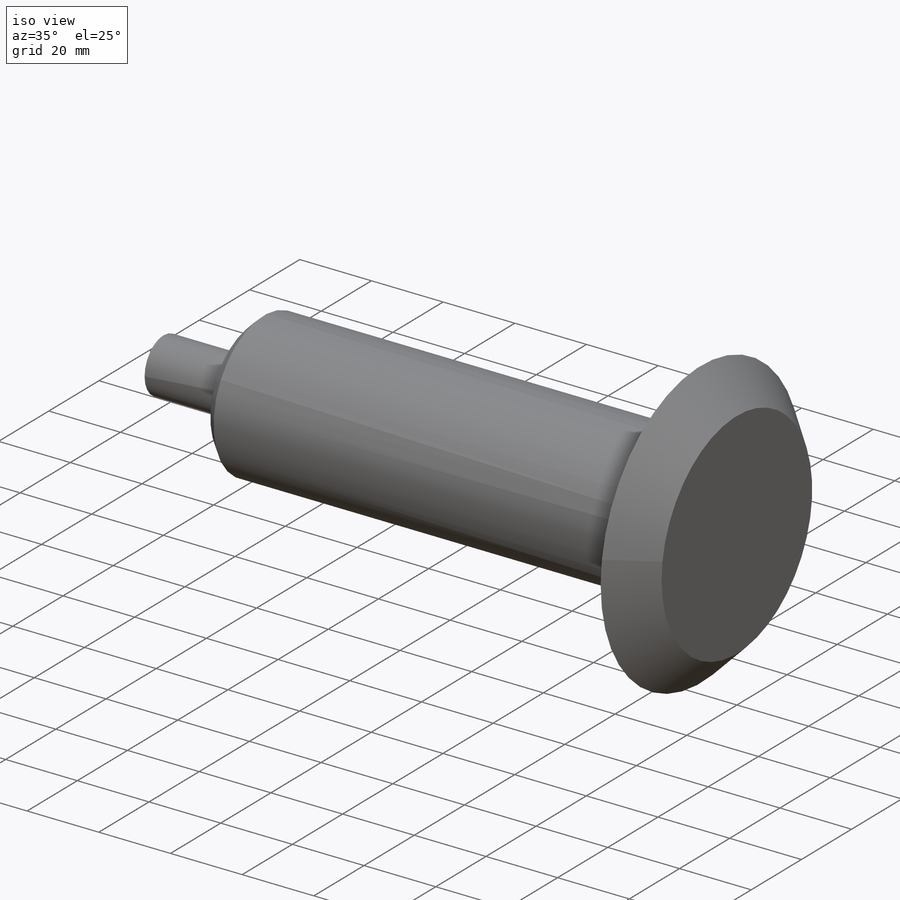
[diagram: iso view]
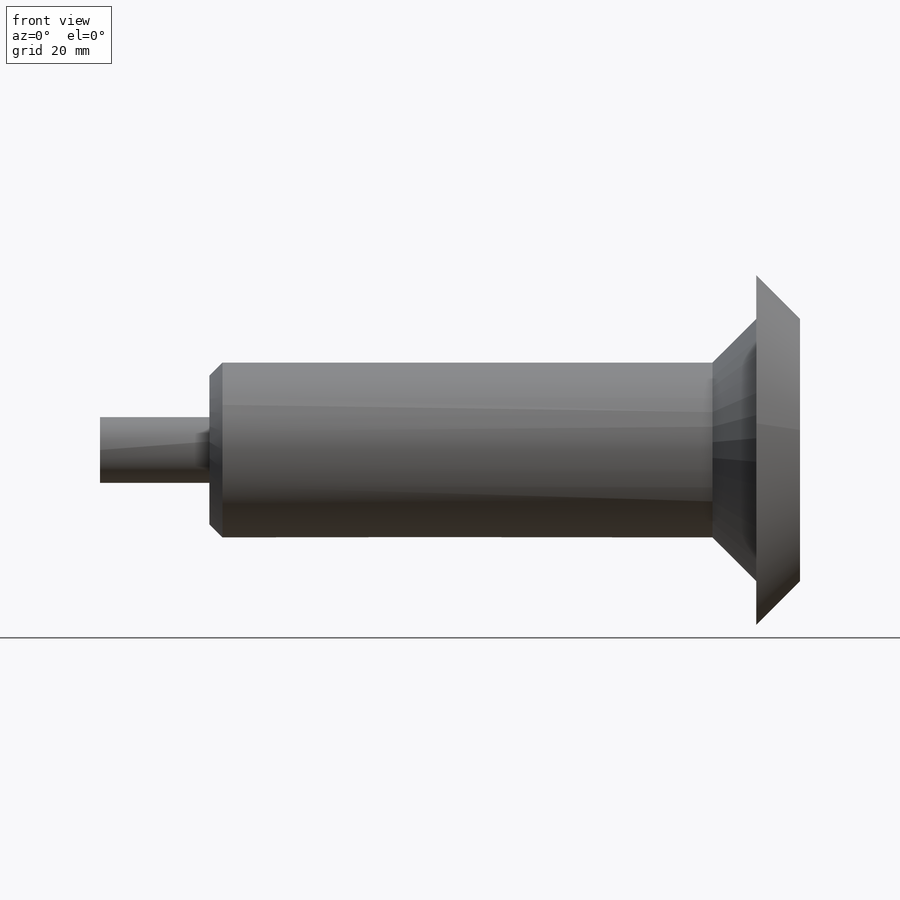
[diagram: front view]
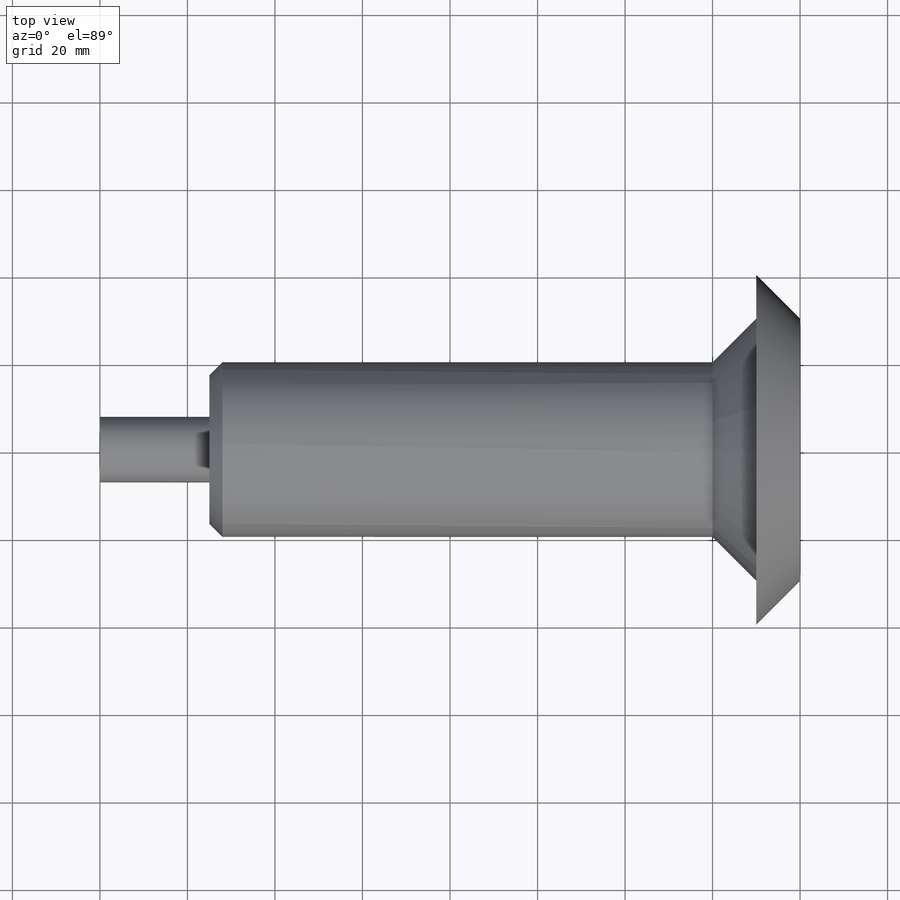
[diagram: top view]
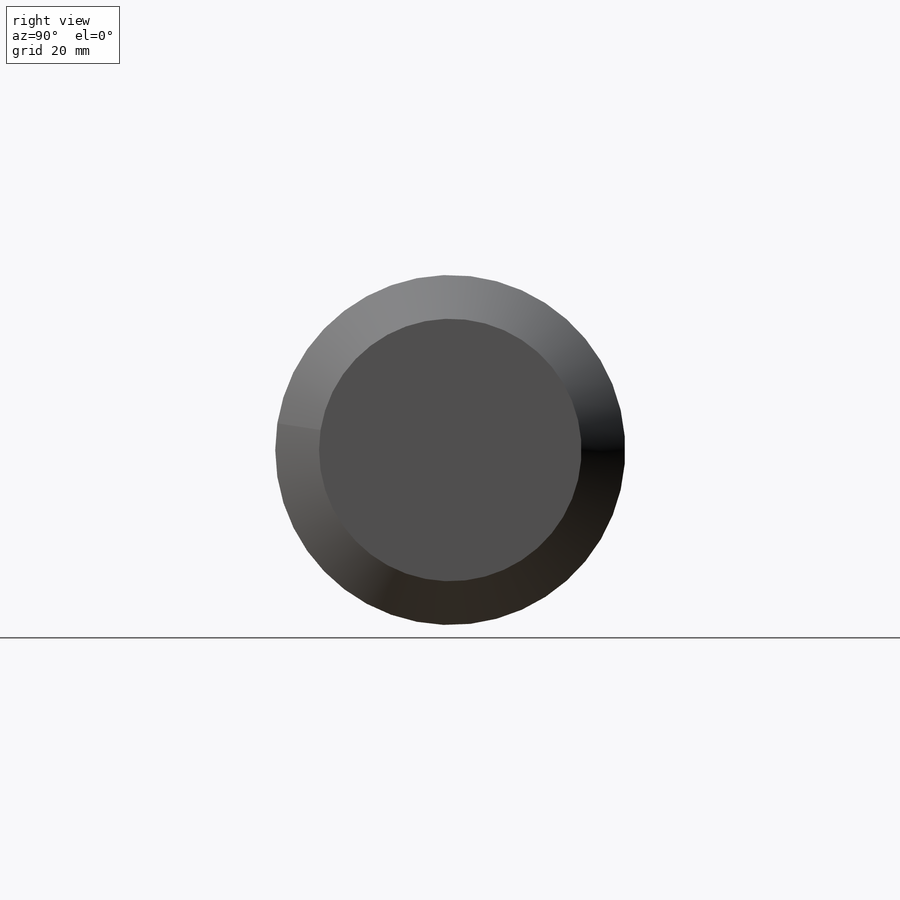
[diagram: right view]
SOLIDWORKS PART (.sldprt)
format: sldprt  version: not decoded by parser v0  size: 150,528 bytes
history: native  units: mm
features: chamfer x3, material x1, sketch x1, revolve x1 (+12 scaffold rows collapsed)
feature tree (18):
  scaffold x12  (default folders/planes/origin — collapsed)
  material  "Material <not specified>"
  sketch  "Sketch1"  dims[c1.D1=3.0mm c1.D2=45.0deg c1.D3=10.0mm c1.D4=45.0deg c2.D1=160.0mm c2.D2=25.0mm c2.D3=10.0mm c2.D4=15.0mm c2.D5=80.0mm c2.D6=40.0mm c2.D7=180.0mm]
  revolve  "Revolve1"  Angle=360deg
  chamfer  "Chamfer5"  Distance=10mm Angle=45deg
  chamfer  "Chamfer6"  Distance=10mm Angle=45deg
  chamfer  "Chamfer7"  Distance=3mm Angle=45deg
decode coverage: 5 of 5 modeling features carry decoded parameters
note: suppression state not decoded; provenance and decode notes live in map.json
